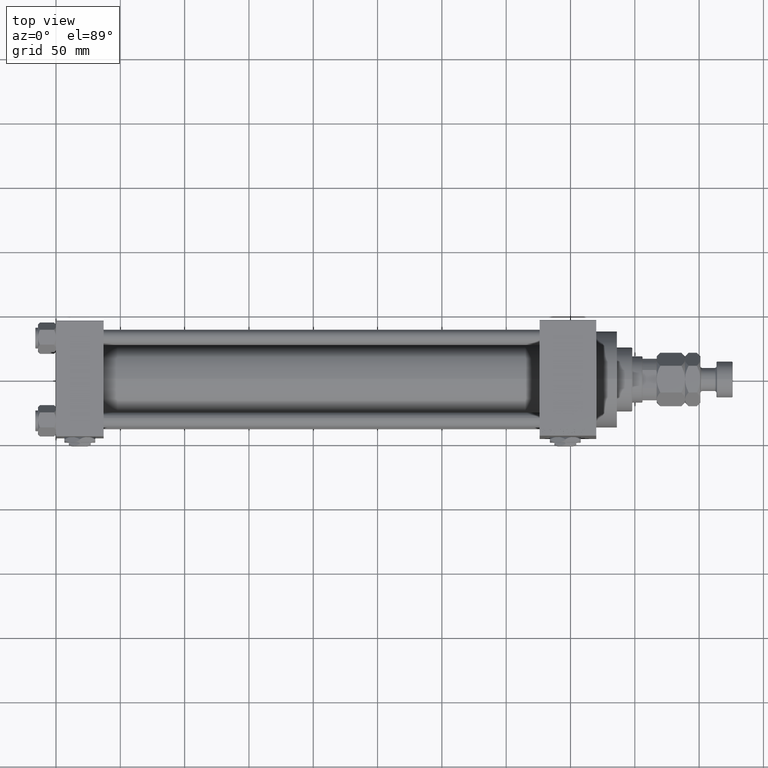
[diagram: clean part render]
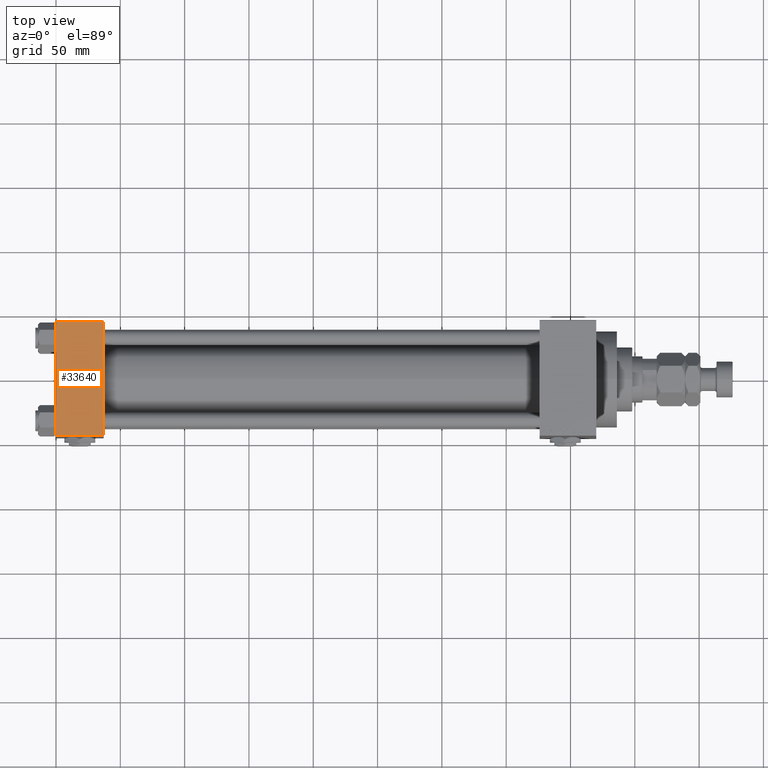
[diagram: same view with one face highlighted and labeled with its STEP entity id]
A machine part, top view. The second image highlights one B-rep face of the part: STEP entity #33640.
In plain terms, the highlighted planar face has unit normal (0, 0, -1).
Its self-contained STEP definition (entity closure, byte-faithful):
#1642 = CARTESIAN_POINT ( 'NONE',  ( 37.00000000000000000, 44.99999999999998579, 45.00000000000001421 ) ) ;
#2040 = LINE ( 'NONE', #17756, #18677 ) ;
#4880 = VERTEX_POINT ( 'NONE', #8455 ) ;
#5072 = EDGE_CURVE ( 'NONE', #11900, #5403, #30825, .T. ) ;
#5403 = VERTEX_POINT ( 'NONE', #31018 ) ;
#6472 = AXIS2_PLACEMENT_3D ( 'NONE', #1642, #37242, #21226 ) ;
#7316 = EDGE_CURVE ( 'NONE', #4880, #25073, #42341, .T. ) ;
#8455 = CARTESIAN_POINT ( 'NONE',  ( 0.000000000000000000, -44.49999999999995737, 45.00000000000000000 ) ) ;
#8611 = PLANE ( 'NONE',  #6472 ) ;
#10504 = ORIENTED_EDGE ( 'NONE', *, *, #30333, .F. ) ;
#11900 = VERTEX_POINT ( 'NONE', #16610 ) ;
#12126 = VECTOR ( 'NONE', #14083, 1000.000000000000000 ) ;
#12852 = EDGE_LOOP ( 'NONE', ( #26211, #23231, #10504, #45692 ) ) ;
#13424 = DIRECTION ( 'NONE',  ( 0.000000000000000000, -1.000000000000000000, -1.541976423090495387E-16 ) ) ;
#14083 = DIRECTION ( 'NONE',  ( -1.000000000000000000, 0.000000000000000000, 0.000000000000000000 ) ) ;
#15346 = EDGE_CURVE ( 'NONE', #5403, #4880, #41521, .T. ) ;
#16610 = CARTESIAN_POINT ( 'NONE',  ( 37.00000000000000000, 44.49999999999998579, 45.00000000000001421 ) ) ;
#17756 = CARTESIAN_POINT ( 'NONE',  ( 37.00000000000000000, 44.99999999999998579, 45.00000000000001421 ) ) ;
#17948 = CARTESIAN_POINT ( 'NONE',  ( 0.000000000000000000, 44.49999999999998579, 45.00000000000001421 ) ) ;
#18603 = CARTESIAN_POINT ( 'NONE',  ( 37.00000000000000000, -44.49999999999998579, 45.00000000000000000 ) ) ;
#18677 = VECTOR ( 'NONE', #40977, 1000.000000000000000 ) ;
#21226 = DIRECTION ( 'NONE',  ( 0.000000000000000000, 1.000000000000000000, 1.541976423090495633E-16 ) ) ;
#23231 = ORIENTED_EDGE ( 'NONE', *, *, #7316, .T. ) ;
#23706 = VECTOR ( 'NONE', #41591, 1000.000000000000000 ) ;
#25073 = VERTEX_POINT ( 'NONE', #43330 ) ;
#26211 = ORIENTED_EDGE ( 'NONE', *, *, #15346, .T. ) ;
#30333 = EDGE_CURVE ( 'NONE', #11900, #25073, #2040, .T. ) ;
#30825 = LINE ( 'NONE', #17948, #12126 ) ;
#31018 = CARTESIAN_POINT ( 'NONE',  ( 0.000000000000000000, 44.49999999999998579, 45.00000000000001421 ) ) ;
#32846 = FACE_OUTER_BOUND ( 'NONE', #12852, .T. ) ;
#33640 = ADVANCED_FACE ( 'NONE', ( #32846 ), #8611, .F. ) ;
#36315 = VECTOR ( 'NONE', #13424, 1000.000000000000000 ) ;
#37242 = DIRECTION ( 'NONE',  ( 0.000000000000000000, 1.541976423090495633E-16, -1.000000000000000000 ) ) ;
#40977 = DIRECTION ( 'NONE',  ( 0.000000000000000000, -1.000000000000000000, -1.541976423090495387E-16 ) ) ;
#41521 = LINE ( 'NONE', #49498, #36315 ) ;
#41591 = DIRECTION ( 'NONE',  ( 1.000000000000000000, 0.000000000000000000, 0.000000000000000000 ) ) ;
#42341 = LINE ( 'NONE', #18603, #23706 ) ;
#43330 = CARTESIAN_POINT ( 'NONE',  ( 37.00000000000000000, -44.49999999999995737, 45.00000000000000000 ) ) ;
#45692 = ORIENTED_EDGE ( 'NONE', *, *, #5072, .T. ) ;
#49498 = CARTESIAN_POINT ( 'NONE',  ( 0.000000000000000000, 44.99999999999998579, 45.00000000000001421 ) ) ;